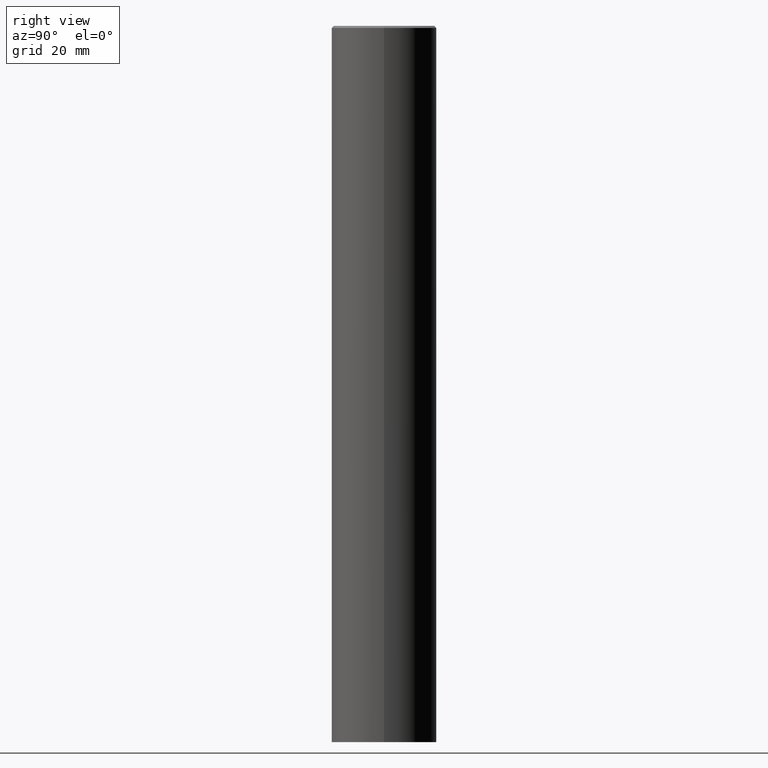
[diagram: clean part render]
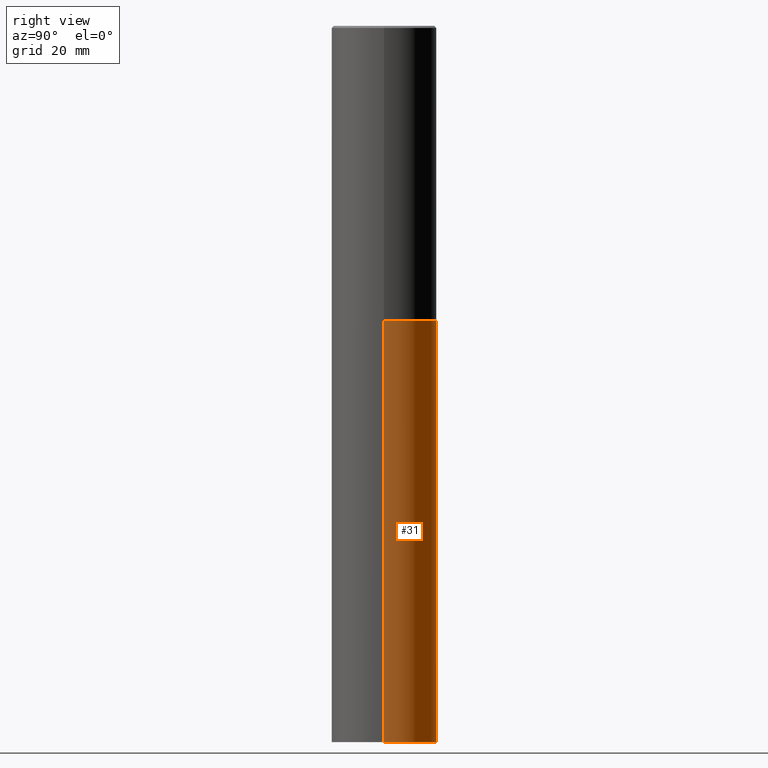
[diagram: same view with one face highlighted and labeled with its STEP entity id]
A machine part, right view. The second image highlights one B-rep face of the part: STEP entity #31.
In plain terms, the highlighted cylindrical surface (partial cylindrical patch) has radius 12.5006 mm, axis along (-0, 0, 1).
Its self-contained STEP definition (entity closure, byte-faithful):
#6 = DIRECTION ( 'NONE',  ( -2.445468806185136597E-29, 3.491481338843145583E-15, 1.000000000000000000 ) ) ;
#24 = VERTEX_POINT ( 'NONE', #175 ) ;
#27 = AXIS2_PLACEMENT_3D ( 'NONE', #153, #6, #69 ) ;
#31 = ADVANCED_FACE ( 'NONE', ( #335 ), #171, .T. ) ;
#38 = DIRECTION ( 'NONE',  ( 1.000000000000000000, -6.982962677686265922E-15, 0.000000000000000000 ) ) ;
#46 = CARTESIAN_POINT ( 'NONE',  ( -0.4921499999999999764, -1.299821836318722399E-14, -6.692899999999999849 ) ) ;
#50 = ORIENTED_EDGE ( 'NONE', *, *, #179, .F. ) ;
#69 = DIRECTION ( 'NONE',  ( 1.000000000000000000, -6.982962677686265922E-15, 0.000000000000000000 ) ) ;
#71 = EDGE_CURVE ( 'NONE', #314, #82, #334, .T. ) ;
#72 = AXIS2_PLACEMENT_3D ( 'NONE', #283, #251, #227 ) ;
#82 = VERTEX_POINT ( 'NONE', #364 ) ;
#87 = CARTESIAN_POINT ( 'NONE',  ( 0.4921499999999999764, -3.436665081823295777E-15, 2.399810400207969603E-29 ) ) ;
#90 = EDGE_CURVE ( 'NONE', #24, #195, #305, .T. ) ;
#101 = EDGE_CURVE ( 'NONE', #24, #314, #319, .T. ) ;
#128 = CARTESIAN_POINT ( 'NONE',  ( 1.636727817291649966E-28, -2.336813545274328780E-14, -6.692899999999999849 ) ) ;
#143 = VECTOR ( 'NONE', #234, 39.37007874015748143 ) ;
#153 = CARTESIAN_POINT ( 'NONE',  ( 6.739467482965618232E-29, -9.622173421717824390E-15, -2.755900000000000016 ) ) ;
#168 = ORIENTED_EDGE ( 'NONE', *, *, #71, .T. ) ;
#171 = CYLINDRICAL_SURFACE ( 'NONE', #72, 0.4921499999999999764 ) ;
#175 = CARTESIAN_POINT ( 'NONE',  ( 0.4921499999999999764, -2.680480053456658516E-14, -6.692899999999999849 ) ) ;
#179 = EDGE_CURVE ( 'NONE', #195, #82, #343, .T. ) ;
#185 = DIRECTION ( 'NONE',  ( -2.445468806185136597E-29, 3.491481338843145583E-15, 1.000000000000000000 ) ) ;
#195 = VERTEX_POINT ( 'NONE', #350 ) ;
#200 = DIRECTION ( 'NONE',  ( -2.445468806185136877E-29, 3.491481338843145188E-15, 1.000000000000000000 ) ) ;
#219 = ORIENTED_EDGE ( 'NONE', *, *, #101, .T. ) ;
#227 = DIRECTION ( 'NONE',  ( 1.000000000000000000, -6.982962677686265922E-15, 4.876176775795935793E-29 ) ) ;
#234 = DIRECTION ( 'NONE',  ( -2.445468806185136877E-29, 3.491481338843145188E-15, 1.000000000000000000 ) ) ;
#251 = DIRECTION ( 'NONE',  ( -2.445468806185136597E-29, 3.491481338843145583E-15, 1.000000000000000000 ) ) ;
#258 = CARTESIAN_POINT ( 'NONE',  ( -0.4921499999999999764, 3.496936074043332897E-15, -2.420853904668951509E-29 ) ) ;
#269 = ORIENTED_EDGE ( 'NONE', *, *, #90, .F. ) ;
#271 = EDGE_LOOP ( 'NONE', ( #219, #168, #50, #269 ) ) ;
#283 = CARTESIAN_POINT ( 'NONE',  ( 0.000000000000000000, 0.000000000000000000, 0.000000000000000000 ) ) ;
#287 = VECTOR ( 'NONE', #200, 39.37007874015748143 ) ;
#305 = LINE ( 'NONE', #87, #287 ) ;
#314 = VERTEX_POINT ( 'NONE', #46 ) ;
#319 = CIRCLE ( 'NONE', #338, 0.4921499999999999764 ) ;
#334 = LINE ( 'NONE', #258, #143 ) ;
#335 = FACE_OUTER_BOUND ( 'NONE', #271, .T. ) ;
#338 = AXIS2_PLACEMENT_3D ( 'NONE', #128, #185, #38 ) ;
#343 = CIRCLE ( 'NONE', #27, 0.4921499999999999764 ) ;
#350 = CARTESIAN_POINT ( 'NONE',  ( 0.4921499999999999764, -1.305883850354112017E-14, -2.755900000000000016 ) ) ;
#364 = CARTESIAN_POINT ( 'NONE',  ( -0.4921499999999999764, -1.299821836318722399E-14, -2.755900000000000016 ) ) ;